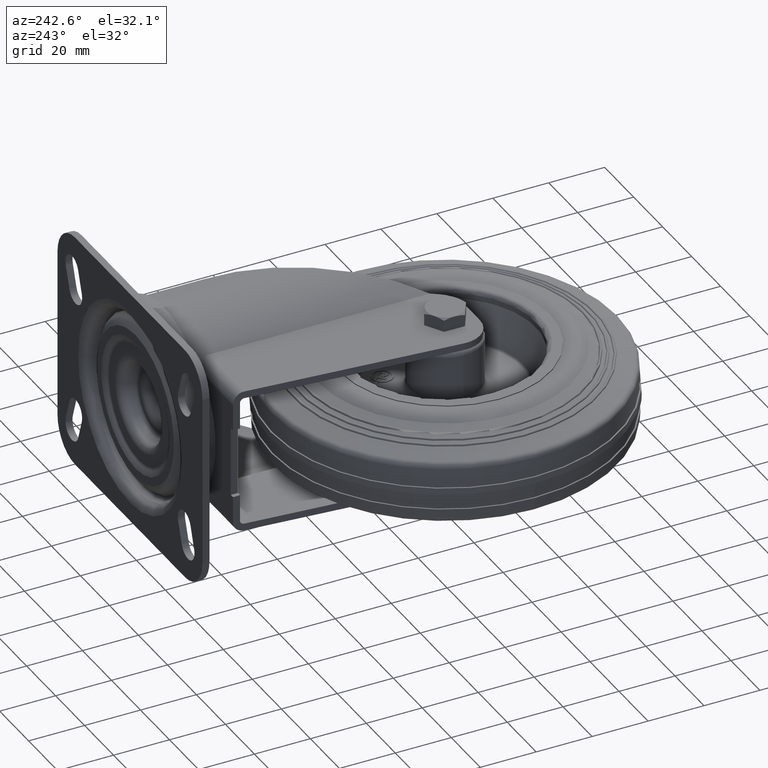
[diagram: clean part render]
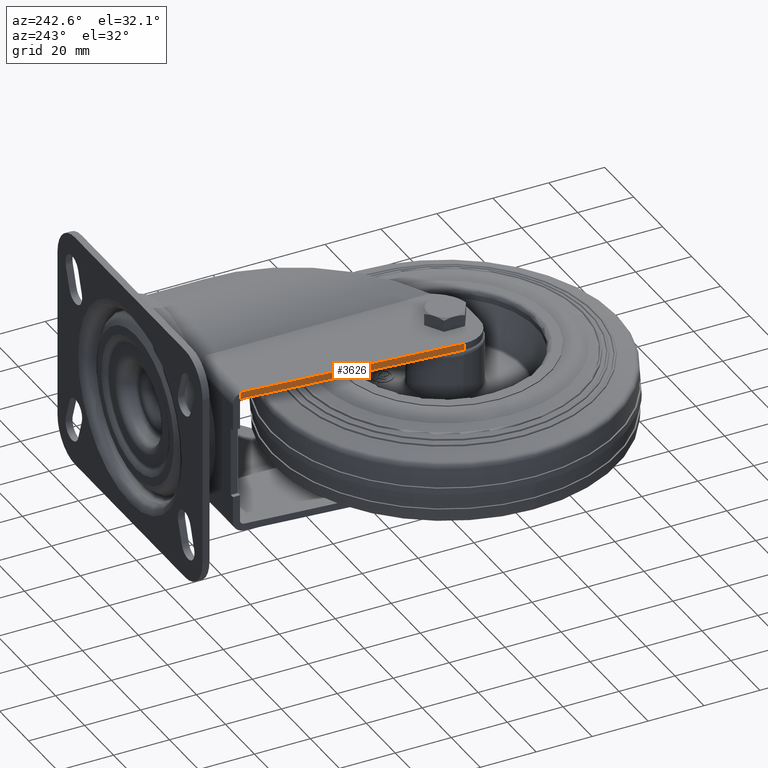
[diagram: same view with one face highlighted and labeled with its STEP entity id]
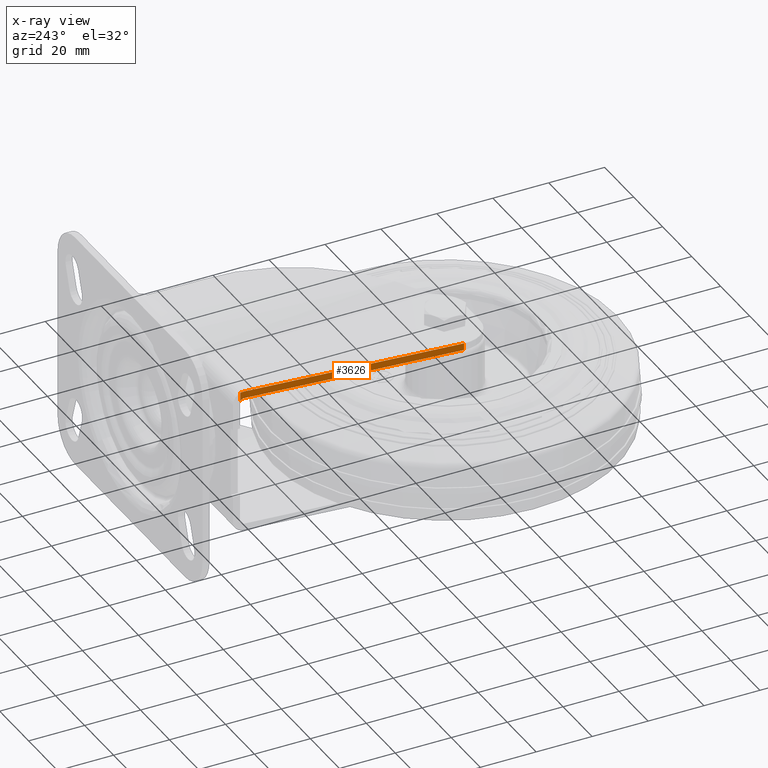
[diagram: x-ray of the same camera — body ghosted, the highlighted face saturated]
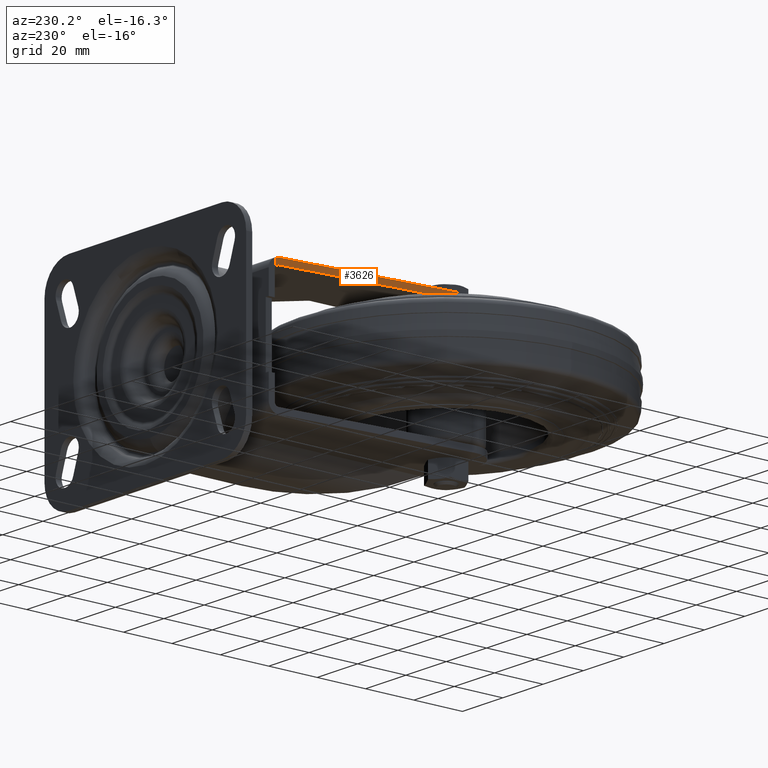
[diagram: same view with one face highlighted and labeled with its STEP entity id]
A machine part, auxiliary view. The second image highlights one B-rep face of the part: STEP entity #3626.
The next image is the same camera in x-ray: the body ghosted, the highlighted face saturated — about 0% of this face is hidden behind the body in this view.
A second angle (auxiliary view) of the same face is appended — the face is thin or edge-on in the first view.
In plain terms, the highlighted planar face has unit normal (0.9962, -0.0874, 0).
Its self-contained STEP definition (entity closure, byte-faithful):
#72=ELLIPSE('',#4074,4.01535836465186,3.99999999999999);
#74=ELLIPSE('',#4088,1.50575938674444,1.49999999999999);
#645=FACE_OUTER_BOUND('',#904,.T.);
#904=EDGE_LOOP('',(#2969,#2970,#2971,#2972,#2973,#2974));
#1063=LINE('',#5920,#1286);
#1076=LINE('',#5997,#1299);
#1088=LINE('',#6049,#1311);
#1148=LINE('',#6294,#1371);
#1286=VECTOR('',#4845,1000.);
#1299=VECTOR('',#4890,1000.);
#1311=VECTOR('',#4938,1000.);
#1371=VECTOR('',#5220,1000.);
#1556=VERTEX_POINT('',#5917);
#1557=VERTEX_POINT('',#5919);
#1561=VERTEX_POINT('',#5929);
#1575=VERTEX_POINT('',#5984);
#1581=VERTEX_POINT('',#5995);
#1585=VERTEX_POINT('',#6016);
#1944=EDGE_CURVE('',#1557,#1556,#1063,.T.);
#1949=EDGE_CURVE('',#1556,#1561,#72,.F.);
#1971=EDGE_CURVE('',#1575,#1581,#1076,.T.);
#1975=EDGE_CURVE('',#1585,#1575,#74,.T.);
#1994=EDGE_CURVE('',#1561,#1585,#1088,.T.);
#2112=EDGE_CURVE('',#1557,#1581,#1148,.T.);
#2969=ORIENTED_EDGE('',*,*,#1994,.T.);
#2970=ORIENTED_EDGE('',*,*,#1975,.T.);
#2971=ORIENTED_EDGE('',*,*,#1971,.T.);
#2972=ORIENTED_EDGE('',*,*,#2112,.F.);
#2973=ORIENTED_EDGE('',*,*,#1944,.T.);
#2974=ORIENTED_EDGE('',*,*,#1949,.T.);
#3264=PLANE('',#4215);
#3626=ADVANCED_FACE('',(#645),#3264,.F.);
#4074=AXIS2_PLACEMENT_3D('',#5930,#4855,#4856);
#4088=AXIS2_PLACEMENT_3D('',#6017,#4896,#4897);
#4215=AXIS2_PLACEMENT_3D('',#6296,#5222,#5223);
#4845=DIRECTION('',(0.0873795186723179,0.996175094908819,0.));
#4855=DIRECTION('center_axis',(0.996175094908819,-0.0873795186723179,0.));
#4856=DIRECTION('ref_axis',(0.0873795186723179,0.996175094908819,0.));
#4890=DIRECTION('',(-0.0873795186723179,-0.996175094908819,0.));
#4896=DIRECTION('center_axis',(0.996175094908819,-0.0873795186723179,0.));
#4897=DIRECTION('ref_axis',(0.0873795186723179,0.996175094908819,0.));
#4938=DIRECTION('',(0.,0.,-1.));
#5220=DIRECTION('',(0.,0.,-1.));
#5222=DIRECTION('center_axis',(0.996175094908819,-0.0873795186723179,0.));
#5223=DIRECTION('ref_axis',(0.0873795186723179,0.996175094908819,0.));
#5917=CARTESIAN_POINT('',(-8.11424154448864,76.,26.));
#5919=CARTESIAN_POINT('',(-14.7039381247509,0.873795186712101,26.));
#5920=CARTESIAN_POINT('',(-8.25080253480192,74.4431287840308,26.));
#5929=CARTESIAN_POINT('',(-8.00000000000036,77.3024171241995,25.7820245417755));
#5930=CARTESIAN_POINT('Origin',(-8.11424154448863,76.,22.));
#5984=CARTESIAN_POINT('',(-8.11424154448864,76.,23.5));
#5995=CARTESIAN_POINT('',(-14.7039381247509,0.873795186712101,23.5));
#5997=CARTESIAN_POINT('',(-8.00000000000036,77.3024171241995,23.5));
#6016=CARTESIAN_POINT('',(-8.00000000000036,77.3024171241995,22.7441166807645));
#6017=CARTESIAN_POINT('Origin',(-8.11424154448863,76.,22.));
#6049=CARTESIAN_POINT('',(-8.00000000000036,77.3024171241995,50.));
#6294=CARTESIAN_POINT('',(-14.7039381247509,0.873795186712101,50.));
#6296=CARTESIAN_POINT('Origin',(-8.00000000000036,77.3024171241995,50.));